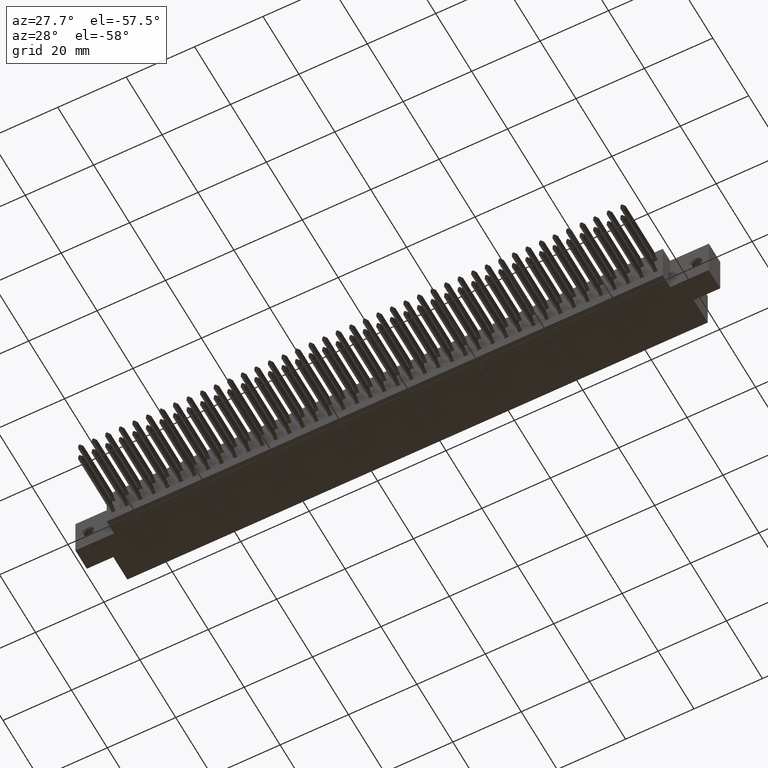
[diagram: clean part render]
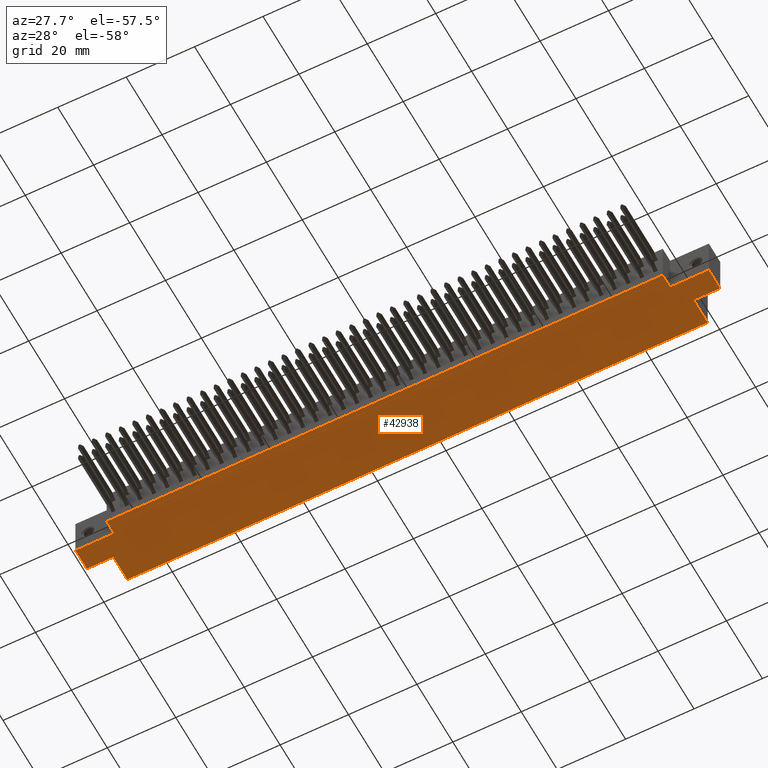
[diagram: same view with one face highlighted and labeled with its STEP entity id]
A machine part, auxiliary view. The second image highlights one B-rep face of the part: STEP entity #42938.
In plain terms, the highlighted planar face has unit normal (0, 0, 1).
Its self-contained STEP definition (entity closure, byte-faithful):
#109 = CARTESIAN_POINT ( 'NONE',  ( 0.0000000000000000000, 0.4129999999999999200, -0.5000000000000000000 ) ) ;
#1093 = DIRECTION ( 'NONE',  ( -1.000000000000000000, -0.0000000000000000000, -0.0000000000000000000 ) ) ;
#1098 = DIRECTION ( 'NONE',  ( -1.000000000000000000, -0.0000000000000000000, -0.0000000000000000000 ) ) ;
#1803 = ORIENTED_EDGE ( 'NONE', *, *, #59601, .F. ) ;
#2181 = CARTESIAN_POINT ( 'NONE',  ( 6.844999999999999800, 0.0000000000000000000, -0.4999999999999987800 ) ) ;
#2248 = ORIENTED_EDGE ( 'NONE', *, *, #33792, .F. ) ;
#2791 = DIRECTION ( 'NONE',  ( -0.0000000000000000000, 1.000000000000000000, -0.0000000000000000000 ) ) ;
#2964 = CARTESIAN_POINT ( 'NONE',  ( 0.3049999999999999900, 0.4129999999999999200, -0.5000000000000000000 ) ) ;
#3741 = LINE ( 'NONE', #109, #46217 ) ;
#4638 = ORIENTED_EDGE ( 'NONE', *, *, #10745, .F. ) ;
#5660 = EDGE_CURVE ( 'NONE', #40934, #21202, #10932, .T. ) ;
#6841 = VECTOR ( 'NONE', #1098, 39.37007874015748100 ) ;
#7207 = ORIENTED_EDGE ( 'NONE', *, *, #52879, .T. ) ;
#7284 = VERTEX_POINT ( 'NONE', #51610 ) ;
#7599 = VECTOR ( 'NONE', #32108, 39.37007874015748100 ) ;
#7884 = DIRECTION ( 'NONE',  ( -1.000000000000000000, 0.0000000000000000000, -2.687063600325503800E-015 ) ) ;
#8347 = LINE ( 'NONE', #23185, #6841 ) ;
#8822 = EDGE_CURVE ( 'NONE', #25168, #30796, #8347, .T. ) ;
#8886 = DIRECTION ( 'NONE',  ( -0.0000000000000000000, -1.000000000000000000, -0.0000000000000000000 ) ) ;
#9032 = CARTESIAN_POINT ( 'NONE',  ( 0.0000000000000000000, 0.4129999999999999200, -0.5000000000000000000 ) ) ;
#9038 = LINE ( 'NONE', #45620, #7599 ) ;
#9383 = ORIENTED_EDGE ( 'NONE', *, *, #11349, .F. ) ;
#9432 = VECTOR ( 'NONE', #19663, 39.37007874015748100 ) ;
#10006 = CARTESIAN_POINT ( 'NONE',  ( 6.985000000000000300, 0.4129999999999999200, -0.5000000000000007800 ) ) ;
#10276 = DIRECTION ( 'NONE',  ( 0.0000000000000000000, 0.0000000000000000000, 1.000000000000000000 ) ) ;
#10299 = EDGE_CURVE ( 'NONE', #15923, #7284, #34710, .T. ) ;
#10745 = EDGE_CURVE ( 'NONE', #29882, #25168, #57718, .T. ) ;
#10854 = DIRECTION ( 'NONE',  ( 1.000000000000000000, 0.0000000000000000000, 1.227796851085061300E-015 ) ) ;
#10932 = LINE ( 'NONE', #38136, #9432 ) ;
#11349 = EDGE_CURVE ( 'NONE', #26446, #34503, #50429, .T. ) ;
#11988 = DIRECTION ( 'NONE',  ( -0.0000000000000000000, -1.000000000000000000, -0.0000000000000000000 ) ) ;
#12947 = LINE ( 'NONE', #21924, #20481 ) ;
#15887 = CARTESIAN_POINT ( 'NONE',  ( 0.4450000000000002800, 0.1630000000000000100, -0.4999999999999997200 ) ) ;
#15923 = VERTEX_POINT ( 'NONE', #9032 ) ;
#16017 = CARTESIAN_POINT ( 'NONE',  ( 6.985000000000000300, 0.7199999999999999700, -0.5000000000000007800 ) ) ;
#16391 = CARTESIAN_POINT ( 'NONE',  ( 0.4450000000000002800, 0.1630000000000000100, -0.4999999999999997200 ) ) ;
#16556 = VERTEX_POINT ( 'NONE', #28655 ) ;
#17039 = DIRECTION ( 'NONE',  ( -0.0000000000000000000, 1.000000000000000000, -0.0000000000000000000 ) ) ;
#19491 = PLANE ( 'NONE',  #25414 ) ;
#19663 = DIRECTION ( 'NONE',  ( -0.0000000000000000000, -1.000000000000000000, -0.0000000000000000000 ) ) ;
#20481 = VECTOR ( 'NONE', #7884, 39.37007874015748100 ) ;
#20791 = VECTOR ( 'NONE', #10854, 39.37007874015748100 ) ;
#21202 = VERTEX_POINT ( 'NONE', #2181 ) ;
#21492 = VECTOR ( 'NONE', #1093, 39.37007874015748100 ) ;
#21924 = CARTESIAN_POINT ( 'NONE',  ( 7.290000000000000000, 0.4129999999999999200, -0.5000000000000000000 ) ) ;
#22184 = LINE ( 'NONE', #56107, #51707 ) ;
#22497 = CARTESIAN_POINT ( 'NONE',  ( 0.4450000000000002800, 0.0000000000000000000, -0.4999999999999997200 ) ) ;
#22787 = CARTESIAN_POINT ( 'NONE',  ( 0.3050000000000000500, 0.4129999999999999200, -0.5000000000000000000 ) ) ;
#23185 = CARTESIAN_POINT ( 'NONE',  ( 0.0000000000000000000, 0.7199999999999999700, -0.5000000000000000000 ) ) ;
#23192 = VECTOR ( 'NONE', #2791, 39.37007874015748100 ) ;
#24459 = CARTESIAN_POINT ( 'NONE',  ( 0.0000000000000000000, 0.1630000000000000100, -0.5000000000000002200 ) ) ;
#25168 = VERTEX_POINT ( 'NONE', #16017 ) ;
#25414 = AXIS2_PLACEMENT_3D ( 'NONE', #42384, #10276, #28705 ) ;
#25982 = VECTOR ( 'NONE', #11988, 39.37007874015748100 ) ;
#26025 = ORIENTED_EDGE ( 'NONE', *, *, #10299, .F. ) ;
#26446 = VERTEX_POINT ( 'NONE', #15887 ) ;
#27358 = CARTESIAN_POINT ( 'NONE',  ( 0.0000000000000000000, 0.7199999999999999700, -0.5000000000000000000 ) ) ;
#28608 = CARTESIAN_POINT ( 'NONE',  ( 0.0000000000000000000, 0.0000000000000000000, -0.5000000000000000000 ) ) ;
#28655 = CARTESIAN_POINT ( 'NONE',  ( 7.290000000000000000, 0.1630000000000000100, -0.5000000000000000000 ) ) ;
#28705 = DIRECTION ( 'NONE',  ( 1.000000000000000000, 0.0000000000000000000, -0.0000000000000000000 ) ) ;
#29269 = EDGE_CURVE ( 'NONE', #48439, #30796, #34793, .T. ) ;
#29882 = VERTEX_POINT ( 'NONE', #10006 ) ;
#30796 = VERTEX_POINT ( 'NONE', #48396 ) ;
#32108 = DIRECTION ( 'NONE',  ( 1.000000000000000000, -0.0000000000000000000, -2.762542914941388000E-015 ) ) ;
#32274 = EDGE_CURVE ( 'NONE', #21202, #34503, #56092, .T. ) ;
#32790 = EDGE_LOOP ( 'NONE', ( #35711, #9383, #1803, #26025, #52012, #35646, #46682, #4638, #2248, #7207, #49116, #51753 ) ) ;
#33792 = EDGE_CURVE ( 'NONE', #40520, #29882, #12947, .T. ) ;
#34503 = VERTEX_POINT ( 'NONE', #22497 ) ;
#34710 = LINE ( 'NONE', #27358, #37624 ) ;
#34793 = LINE ( 'NONE', #2964, #41254 ) ;
#35646 = ORIENTED_EDGE ( 'NONE', *, *, #29269, .T. ) ;
#35711 = ORIENTED_EDGE ( 'NONE', *, *, #32274, .T. ) ;
#36564 = LINE ( 'NONE', #24459, #20791 ) ;
#37624 = VECTOR ( 'NONE', #8886, 39.37007874015748100 ) ;
#38136 = CARTESIAN_POINT ( 'NONE',  ( 6.844999999999999800, 0.1630000000000000100, -0.4999999999999987800 ) ) ;
#38704 = CARTESIAN_POINT ( 'NONE',  ( 7.290000000000000000, 0.4129999999999999200, -0.5000000000000000000 ) ) ;
#39969 = CARTESIAN_POINT ( 'NONE',  ( 6.985000000000000300, 0.4129999999999999200, -0.5000000000000007800 ) ) ;
#40520 = VERTEX_POINT ( 'NONE', #38704 ) ;
#40934 = VERTEX_POINT ( 'NONE', #51658 ) ;
#41254 = VECTOR ( 'NONE', #17039, 39.37007874015748100 ) ;
#42384 = CARTESIAN_POINT ( 'NONE',  ( 0.0000000000000000000, 0.7199999999999999700, -0.5000000000000000000 ) ) ;
#42938 = ADVANCED_FACE ( 'NONE', ( #45526 ), #19491, .F. ) ;
#45526 = FACE_OUTER_BOUND ( 'NONE', #32790, .T. ) ;
#45620 = CARTESIAN_POINT ( 'NONE',  ( 7.290000000000000000, 0.1630000000000000100, -0.5000000000000000000 ) ) ;
#46217 = VECTOR ( 'NONE', #59430, 39.37007874015748100 ) ;
#46417 = EDGE_CURVE ( 'NONE', #48439, #15923, #3741, .T. ) ;
#46682 = ORIENTED_EDGE ( 'NONE', *, *, #8822, .F. ) ;
#46866 = DIRECTION ( 'NONE',  ( -0.0000000000000000000, -1.000000000000000000, -0.0000000000000000000 ) ) ;
#48396 = CARTESIAN_POINT ( 'NONE',  ( 0.3049999999999999900, 0.7199999999999999700, -0.5000000000000000000 ) ) ;
#48439 = VERTEX_POINT ( 'NONE', #22787 ) ;
#49116 = ORIENTED_EDGE ( 'NONE', *, *, #50858, .F. ) ;
#50429 = LINE ( 'NONE', #16391, #25982 ) ;
#50858 = EDGE_CURVE ( 'NONE', #40934, #16556, #9038, .T. ) ;
#51610 = CARTESIAN_POINT ( 'NONE',  ( 0.0000000000000000000, 0.1630000000000000100, -0.5000000000000000000 ) ) ;
#51658 = CARTESIAN_POINT ( 'NONE',  ( 6.844999999999999800, 0.1630000000000000100, -0.5000000000000000000 ) ) ;
#51707 = VECTOR ( 'NONE', #46866, 39.37007874015748100 ) ;
#51753 = ORIENTED_EDGE ( 'NONE', *, *, #5660, .T. ) ;
#52012 = ORIENTED_EDGE ( 'NONE', *, *, #46417, .F. ) ;
#52879 = EDGE_CURVE ( 'NONE', #40520, #16556, #22184, .T. ) ;
#56092 = LINE ( 'NONE', #28608, #21492 ) ;
#56107 = CARTESIAN_POINT ( 'NONE',  ( 7.290000000000000000, 0.7199999999999999700, -0.5000000000000000000 ) ) ;
#57718 = LINE ( 'NONE', #39969, #23192 ) ;
#59430 = DIRECTION ( 'NONE',  ( -1.000000000000000000, -0.0000000000000000000, -0.0000000000000000000 ) ) ;
#59601 = EDGE_CURVE ( 'NONE', #7284, #26446, #36564, .T. ) ;